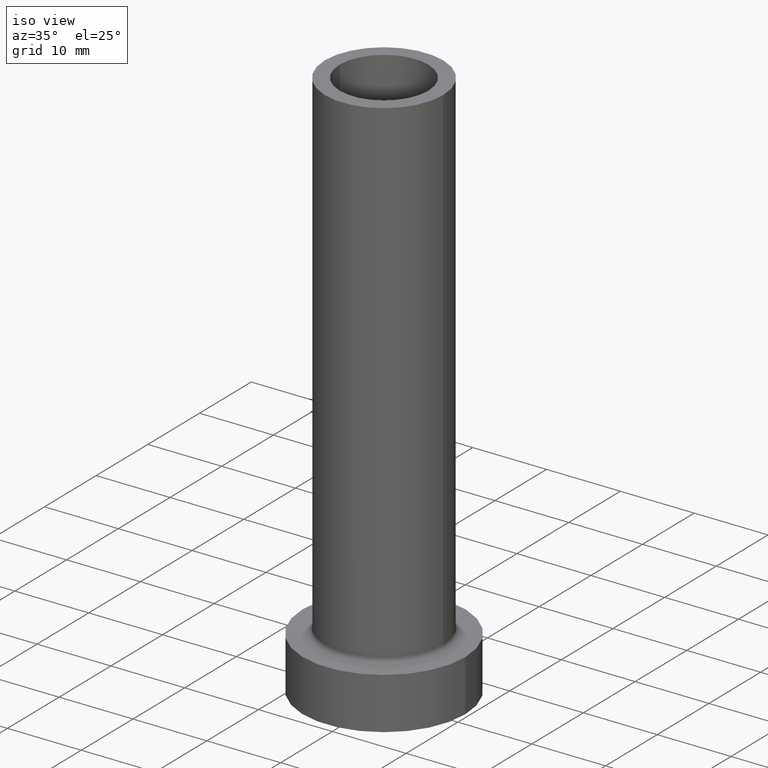
[diagram: clean part render]
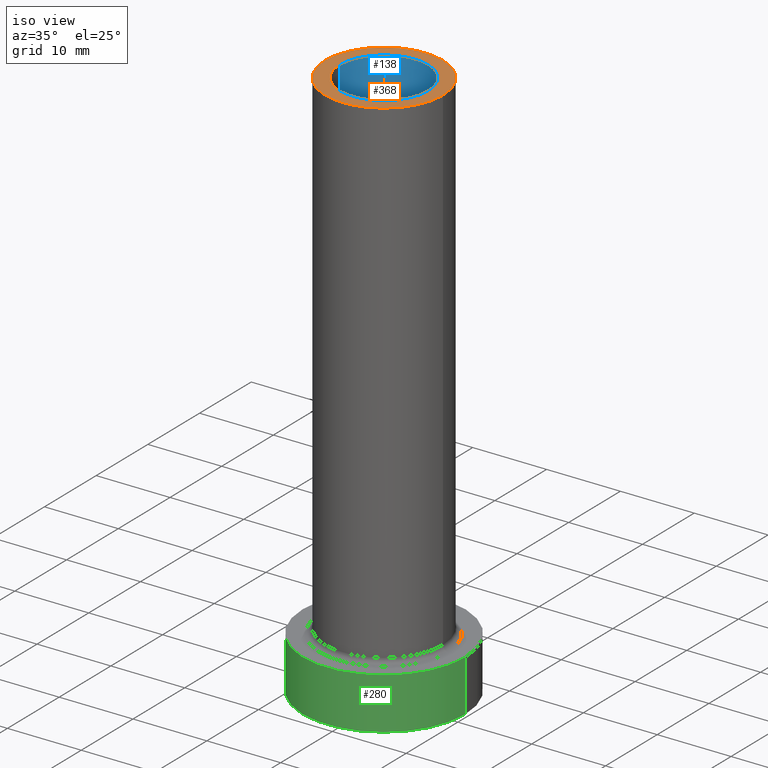
[diagram: same view with three faces highlighted in distinct colors, each labeled with its STEP entity id]
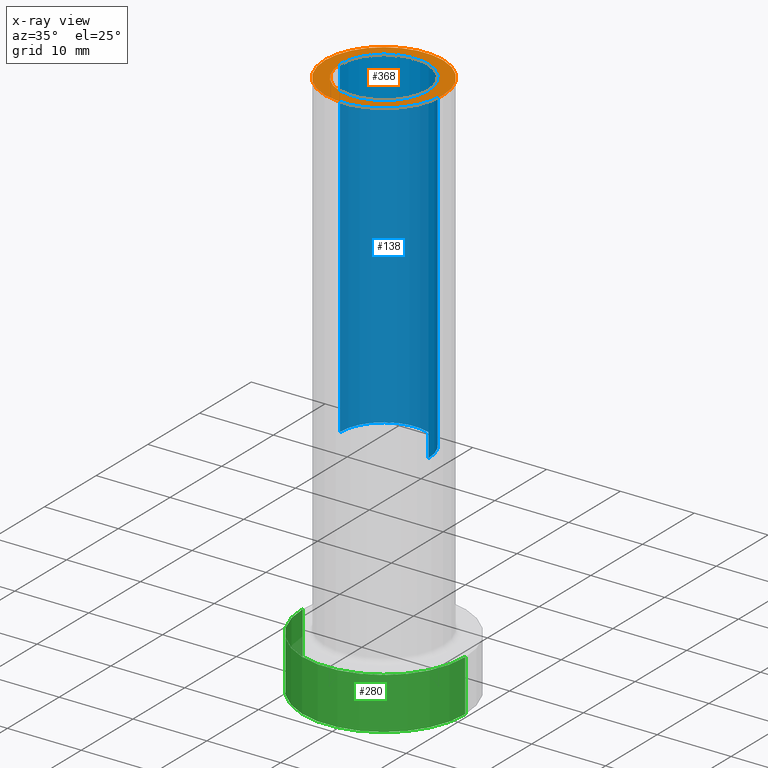
[diagram: x-ray of the same camera — body ghosted, the three highlighted faces saturated]
A machine part, iso view with three faces highlighted in distinct colors.
The next image is the same camera in x-ray (body ghosted, the three faces saturated) — at least one of them is partly hidden behind the body in this view.
Their STEP definitions:

[orange] entity #368 — the highlighted planar face has unit normal (0, 0, 1).
#4 = CARTESIAN_POINT ( 'NONE',  ( 0.000000000000000000, 0.000000000000000000, 75.00000000000001421 ) ) ;
#11 = EDGE_LOOP ( 'NONE', ( #323, #55 ) ) ;
#41 = DIRECTION ( 'NONE',  ( 1.000000000000000000, 0.000000000000000000, 0.000000000000000000 ) ) ;
#47 = CIRCLE ( 'NONE', #266, 6.000000000000000888 ) ;
#51 = EDGE_CURVE ( 'NONE', #116, #375, #47, .T. ) ;
#53 = ORIENTED_EDGE ( 'NONE', *, *, #128, .T. ) ;
#55 = ORIENTED_EDGE ( 'NONE', *, *, #51, .F. ) ;
#69 = FACE_BOUND ( 'NONE', #11, .T. ) ;
#72 = DIRECTION ( 'NONE',  ( 0.000000000000000000, 0.000000000000000000, 1.000000000000000000 ) ) ;
#75 = PLANE ( 'NONE',  #253 ) ;
#100 = DIRECTION ( 'NONE',  ( 0.000000000000000000, 0.000000000000000000, 1.000000000000000000 ) ) ;
#108 = DIRECTION ( 'NONE',  ( 0.000000000000000000, 0.000000000000000000, 1.000000000000000000 ) ) ;
#116 = VERTEX_POINT ( 'NONE', #382 ) ;
#128 = EDGE_CURVE ( 'NONE', #433, #232, #135, .T. ) ;
#130 = CARTESIAN_POINT ( 'NONE',  ( 8.000000000000000000, 9.797174393178825657E-16, 75.00000000000001421 ) ) ;
#135 = CIRCLE ( 'NONE', #226, 8.000000000000000000 ) ;
#142 = AXIS2_PLACEMENT_3D ( 'NONE', #426, #72, #41 ) ;
#145 = DIRECTION ( 'NONE',  ( 1.000000000000000000, 0.000000000000000000, 0.000000000000000000 ) ) ;
#147 = CIRCLE ( 'NONE', #142, 8.000000000000000000 ) ;
#173 = CARTESIAN_POINT ( 'NONE',  ( 0.000000000000000000, 0.000000000000000000, 75.00000000000001421 ) ) ;
#175 = CARTESIAN_POINT ( 'NONE',  ( 0.000000000000000000, 0.000000000000000000, 75.00000000000001421 ) ) ;
#181 = DIRECTION ( 'NONE',  ( 1.000000000000000000, 0.000000000000000000, 0.000000000000000000 ) ) ;
#214 = DIRECTION ( 'NONE',  ( 1.000000000000000000, 0.000000000000000000, -0.000000000000000000 ) ) ;
#226 = AXIS2_PLACEMENT_3D ( 'NONE', #175, #100, #351 ) ;
#232 = VERTEX_POINT ( 'NONE', #130 ) ;
#245 = CARTESIAN_POINT ( 'NONE',  ( -6.000000000000000888, 0.000000000000000000, 75.00000000000001421 ) ) ;
#247 = FACE_OUTER_BOUND ( 'NONE', #256, .T. ) ;
#253 = AXIS2_PLACEMENT_3D ( 'NONE', #349, #388, #214 ) ;
#256 = EDGE_LOOP ( 'NONE', ( #53, #443 ) ) ;
#266 = AXIS2_PLACEMENT_3D ( 'NONE', #173, #378, #181 ) ;
#314 = CIRCLE ( 'NONE', #327, 6.000000000000000888 ) ;
#323 = ORIENTED_EDGE ( 'NONE', *, *, #453, .F. ) ;
#327 = AXIS2_PLACEMENT_3D ( 'NONE', #4, #108, #145 ) ;
#349 = CARTESIAN_POINT ( 'NONE',  ( 0.000000000000000000, 0.000000000000000000, 75.00000000000001421 ) ) ;
#351 = DIRECTION ( 'NONE',  ( 1.000000000000000000, 0.000000000000000000, 0.000000000000000000 ) ) ;
#368 = ADVANCED_FACE ( 'NONE', ( #69, #247 ), #75, .T. ) ;
#375 = VERTEX_POINT ( 'NONE', #245 ) ;
#378 = DIRECTION ( 'NONE',  ( 0.000000000000000000, 0.000000000000000000, 1.000000000000000000 ) ) ;
#379 = EDGE_CURVE ( 'NONE', #232, #433, #147, .T. ) ;
#382 = CARTESIAN_POINT ( 'NONE',  ( 6.000000000000000888, 7.347880794884119736E-16, 75.00000000000001421 ) ) ;
#388 = DIRECTION ( 'NONE',  ( 0.000000000000000000, 0.000000000000000000, 1.000000000000000000 ) ) ;
#419 = CARTESIAN_POINT ( 'NONE',  ( -8.000000000000000000, 0.000000000000000000, 75.00000000000001421 ) ) ;
#426 = CARTESIAN_POINT ( 'NONE',  ( 0.000000000000000000, 0.000000000000000000, 75.00000000000001421 ) ) ;
#433 = VERTEX_POINT ( 'NONE', #419 ) ;
#443 = ORIENTED_EDGE ( 'NONE', *, *, #379, .T. ) ;
#453 = EDGE_CURVE ( 'NONE', #375, #116, #314, .T. ) ;

[blue] entity #138 — the highlighted cylindrical surface (partial cylindrical patch) has radius 6 mm, axis along (0, 0, -1).
#26 = DIRECTION ( 'NONE',  ( 0.000000000000000000, 0.000000000000000000, 1.000000000000000000 ) ) ;
#47 = CIRCLE ( 'NONE', #266, 6.000000000000000888 ) ;
#51 = EDGE_CURVE ( 'NONE', #116, #375, #47, .T. ) ;
#65 = AXIS2_PLACEMENT_3D ( 'NONE', #339, #26, #372 ) ;
#89 = ORIENTED_EDGE ( 'NONE', *, *, #423, .F. ) ;
#116 = VERTEX_POINT ( 'NONE', #382 ) ;
#138 = ADVANCED_FACE ( 'NONE', ( #310 ), #246, .F. ) ;
#153 = ORIENTED_EDGE ( 'NONE', *, *, #306, .F. ) ;
#160 = LINE ( 'NONE', #341, #178 ) ;
#165 = CARTESIAN_POINT ( 'NONE',  ( 6.000000000000000888, 7.347880794884119736E-16, 30.00000000000001421 ) ) ;
#173 = CARTESIAN_POINT ( 'NONE',  ( 0.000000000000000000, 0.000000000000000000, 75.00000000000001421 ) ) ;
#178 = VECTOR ( 'NONE', #446, 1000.000000000000000 ) ;
#181 = DIRECTION ( 'NONE',  ( 1.000000000000000000, 0.000000000000000000, 0.000000000000000000 ) ) ;
#183 = LINE ( 'NONE', #317, #428 ) ;
#205 = EDGE_LOOP ( 'NONE', ( #89, #441, #219, #153 ) ) ;
#211 = EDGE_CURVE ( 'NONE', #375, #293, #160, .T. ) ;
#215 = DIRECTION ( 'NONE',  ( 0.000000000000000000, 0.000000000000000000, -1.000000000000000000 ) ) ;
#219 = ORIENTED_EDGE ( 'NONE', *, *, #211, .T. ) ;
#233 = CARTESIAN_POINT ( 'NONE',  ( -6.000000000000000888, 0.000000000000000000, 30.00000000000001421 ) ) ;
#239 = DIRECTION ( 'NONE',  ( -1.000000000000000000, 0.000000000000000000, 0.000000000000000000 ) ) ;
#245 = CARTESIAN_POINT ( 'NONE',  ( -6.000000000000000888, 0.000000000000000000, 75.00000000000001421 ) ) ;
#246 = CYLINDRICAL_SURFACE ( 'NONE', #283, 6.000000000000000888 ) ;
#266 = AXIS2_PLACEMENT_3D ( 'NONE', #173, #378, #181 ) ;
#271 = CARTESIAN_POINT ( 'NONE',  ( 0.000000000000000000, 0.000000000000000000, 75.00000000000001421 ) ) ;
#283 = AXIS2_PLACEMENT_3D ( 'NONE', #271, #215, #239 ) ;
#293 = VERTEX_POINT ( 'NONE', #233 ) ;
#306 = EDGE_CURVE ( 'NONE', #328, #293, #399, .T. ) ;
#310 = FACE_OUTER_BOUND ( 'NONE', #205, .T. ) ;
#317 = CARTESIAN_POINT ( 'NONE',  ( 6.000000000000000888, 7.347880794884119736E-16, 75.00000000000001421 ) ) ;
#328 = VERTEX_POINT ( 'NONE', #165 ) ;
#339 = CARTESIAN_POINT ( 'NONE',  ( 0.000000000000000000, 0.000000000000000000, 30.00000000000001421 ) ) ;
#341 = CARTESIAN_POINT ( 'NONE',  ( -6.000000000000000888, 0.000000000000000000, 75.00000000000001421 ) ) ;
#372 = DIRECTION ( 'NONE',  ( 1.000000000000000000, 0.000000000000000000, 0.000000000000000000 ) ) ;
#375 = VERTEX_POINT ( 'NONE', #245 ) ;
#378 = DIRECTION ( 'NONE',  ( 0.000000000000000000, 0.000000000000000000, 1.000000000000000000 ) ) ;
#382 = CARTESIAN_POINT ( 'NONE',  ( 6.000000000000000888, 7.347880794884119736E-16, 75.00000000000001421 ) ) ;
#392 = DIRECTION ( 'NONE',  ( 0.000000000000000000, 0.000000000000000000, -1.000000000000000000 ) ) ;
#399 = CIRCLE ( 'NONE', #65, 6.000000000000000888 ) ;
#423 = EDGE_CURVE ( 'NONE', #116, #328, #183, .T. ) ;
#428 = VECTOR ( 'NONE', #392, 1000.000000000000000 ) ;
#441 = ORIENTED_EDGE ( 'NONE', *, *, #51, .T. ) ;
#446 = DIRECTION ( 'NONE',  ( 0.000000000000000000, 0.000000000000000000, -1.000000000000000000 ) ) ;

[green] entity #280 — the highlighted cylindrical surface (partial cylindrical patch) has radius 11 mm, axis along (-0, -0, -1).
#14 = VECTOR ( 'NONE', #307, 1000.000000000000000 ) ;
#24 = CYLINDRICAL_SURFACE ( 'NONE', #44, 11.00000000000000000 ) ;
#30 = CARTESIAN_POINT ( 'NONE',  ( -11.00000000000000000, 0.000000000000000000, 7.000000000000000000 ) ) ;
#31 = CIRCLE ( 'NONE', #80, 11.00000000000000000 ) ;
#37 = CARTESIAN_POINT ( 'NONE',  ( 11.00000000000000000, 1.347111479062088405E-15, 7.000000000000000000 ) ) ;
#40 = EDGE_CURVE ( 'NONE', #296, #78, #64, .T. ) ;
#43 = ORIENTED_EDGE ( 'NONE', *, *, #137, .F. ) ;
#44 = AXIS2_PLACEMENT_3D ( 'NONE', #297, #98, #238 ) ;
#64 = LINE ( 'NONE', #104, #14 ) ;
#74 = EDGE_CURVE ( 'NONE', #151, #409, #109, .T. ) ;
#78 = VERTEX_POINT ( 'NONE', #141 ) ;
#80 = AXIS2_PLACEMENT_3D ( 'NONE', #454, #258, #167 ) ;
#86 = ORIENTED_EDGE ( 'NONE', *, *, #40, .T. ) ;
#98 = DIRECTION ( 'NONE',  ( -0.000000000000000000, -0.000000000000000000, -1.000000000000000000 ) ) ;
#104 = CARTESIAN_POINT ( 'NONE',  ( -11.00000000000000000, 0.000000000000000000, 7.000000000000000000 ) ) ;
#107 = CARTESIAN_POINT ( 'NONE',  ( 11.00000000000000000, 1.347111479062088405E-15, 7.000000000000000000 ) ) ;
#109 = LINE ( 'NONE', #107, #387 ) ;
#125 = AXIS2_PLACEMENT_3D ( 'NONE', #313, #168, #424 ) ;
#137 = EDGE_CURVE ( 'NONE', #296, #151, #208, .T. ) ;
#141 = CARTESIAN_POINT ( 'NONE',  ( -11.00000000000000000, 0.000000000000000000, 0.000000000000000000 ) ) ;
#151 = VERTEX_POINT ( 'NONE', #37 ) ;
#157 = EDGE_CURVE ( 'NONE', #78, #409, #31, .T. ) ;
#167 = DIRECTION ( 'NONE',  ( 1.000000000000000000, 0.000000000000000000, 0.000000000000000000 ) ) ;
#168 = DIRECTION ( 'NONE',  ( 0.000000000000000000, 0.000000000000000000, 1.000000000000000000 ) ) ;
#197 = ORIENTED_EDGE ( 'NONE', *, *, #157, .T. ) ;
#208 = CIRCLE ( 'NONE', #125, 11.00000000000000000 ) ;
#221 = ORIENTED_EDGE ( 'NONE', *, *, #74, .F. ) ;
#238 = DIRECTION ( 'NONE',  ( -1.000000000000000000, 0.000000000000000000, 0.000000000000000000 ) ) ;
#258 = DIRECTION ( 'NONE',  ( 0.000000000000000000, 0.000000000000000000, 1.000000000000000000 ) ) ;
#277 = CARTESIAN_POINT ( 'NONE',  ( 11.00000000000000000, 1.347111479062088405E-15, 0.000000000000000000 ) ) ;
#280 = ADVANCED_FACE ( 'NONE', ( #302 ), #24, .T. ) ;
#296 = VERTEX_POINT ( 'NONE', #30 ) ;
#297 = CARTESIAN_POINT ( 'NONE',  ( 0.000000000000000000, 0.000000000000000000, 7.000000000000000000 ) ) ;
#302 = FACE_OUTER_BOUND ( 'NONE', #413, .T. ) ;
#307 = DIRECTION ( 'NONE',  ( -0.000000000000000000, -0.000000000000000000, -1.000000000000000000 ) ) ;
#313 = CARTESIAN_POINT ( 'NONE',  ( 0.000000000000000000, 0.000000000000000000, 7.000000000000000000 ) ) ;
#387 = VECTOR ( 'NONE', #421, 1000.000000000000000 ) ;
#409 = VERTEX_POINT ( 'NONE', #277 ) ;
#413 = EDGE_LOOP ( 'NONE', ( #221, #43, #86, #197 ) ) ;
#421 = DIRECTION ( 'NONE',  ( -0.000000000000000000, -0.000000000000000000, -1.000000000000000000 ) ) ;
#424 = DIRECTION ( 'NONE',  ( 1.000000000000000000, 0.000000000000000000, 0.000000000000000000 ) ) ;
#454 = CARTESIAN_POINT ( 'NONE',  ( 0.000000000000000000, 0.000000000000000000, 0.000000000000000000 ) ) ;